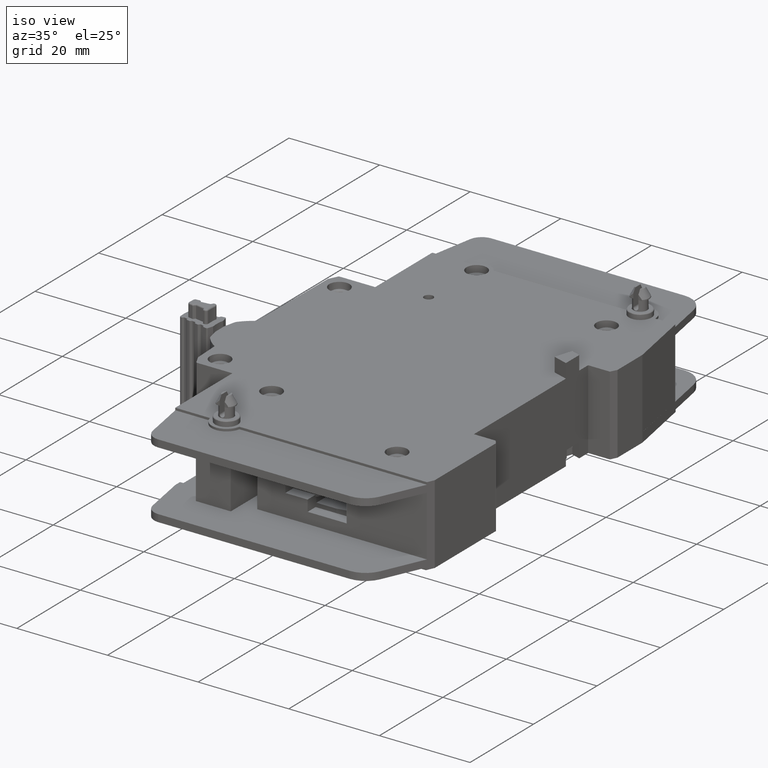
[diagram: clean part render]
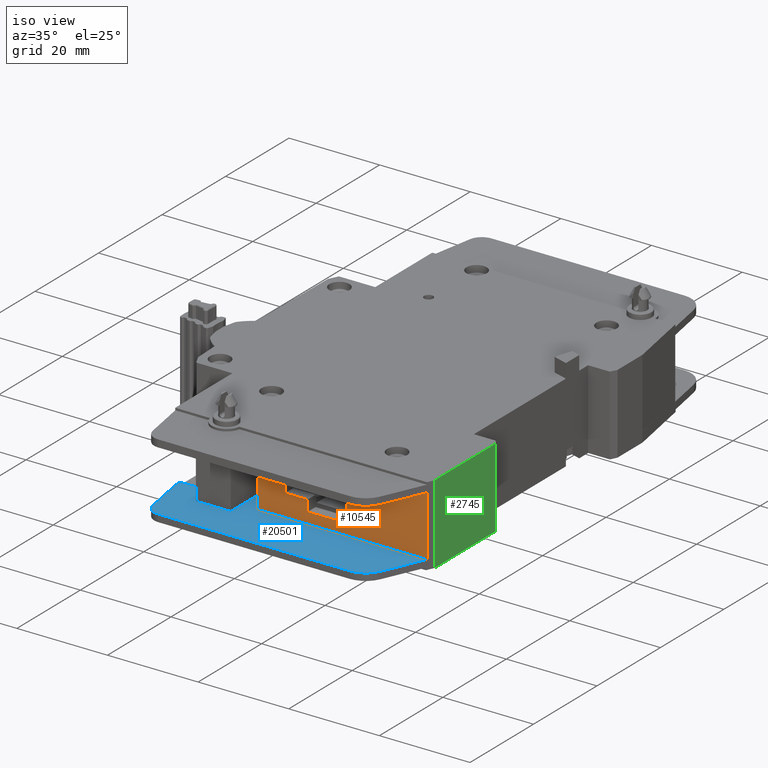
[diagram: same view with three faces highlighted in distinct colors, each labeled with its STEP entity id]
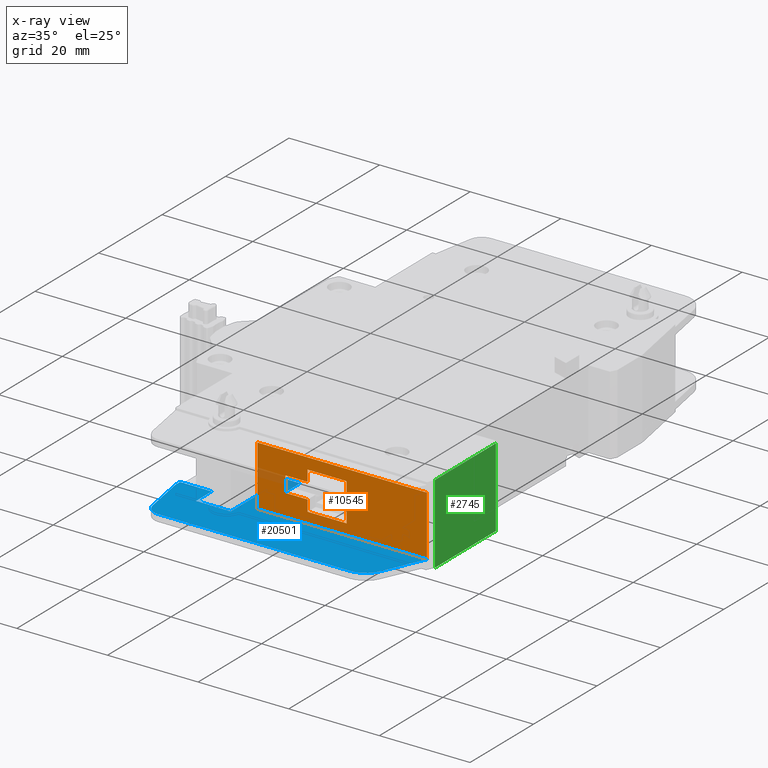
[diagram: x-ray of the same camera — body ghosted, the three highlighted faces saturated]
A machine part, iso view with three faces highlighted in distinct colors.
The next image is the same camera in x-ray (body ghosted, the three faces saturated) — at least one of them is partly hidden behind the body in this view.
Their STEP definitions:

[orange] entity #10545 — the highlighted planar face has unit normal (0, -1, 0).
#97 = LINE ( 'NONE', #29846, #9650 ) ;
#666 = CARTESIAN_POINT ( 'NONE',  ( 0.8858267716535430658, -1.594488188976372900, 0.5098425196850394636 ) ) ;
#886 = EDGE_CURVE ( 'NONE', #11234, #5505, #13536, .T. ) ;
#1080 = ORIENTED_EDGE ( 'NONE', *, *, #27623, .T. ) ;
#2090 = DIRECTION ( 'NONE',  ( 0.0000000000000000000, 0.0000000000000000000, 1.000000000000000000 ) ) ;
#2563 = CARTESIAN_POINT ( 'NONE',  ( 0.8858267716535430658, -1.594488188976379783, 0.4133858267716533641 ) ) ;
#2865 = CARTESIAN_POINT ( 'NONE',  ( 0.6929133858267714219, -1.594488188976380005, -4.312619414957868713 ) ) ;
#3602 = PLANE ( 'NONE',  #17177 ) ;
#3657 = EDGE_CURVE ( 'NONE', #20882, #28601, #23948, .T. ) ;
#4391 = ORIENTED_EDGE ( 'NONE', *, *, #3657, .T. ) ;
#4731 = ORIENTED_EDGE ( 'NONE', *, *, #12220, .T. ) ;
#4952 = VERTEX_POINT ( 'NONE', #16384 ) ;
#5505 = VERTEX_POINT ( 'NONE', #12246 ) ;
#5703 = VECTOR ( 'NONE', #12924, 39.37007874015748143 ) ;
#5750 = LINE ( 'NONE', #17816, #5703 ) ;
#5776 = CARTESIAN_POINT ( 'NONE',  ( 1.413385826771655029, -1.594488188976378229, 0.4133858267716533641 ) ) ;
#5901 = DIRECTION ( 'NONE',  ( 7.209299500779263537E-15, -1.000000000000000000, 0.0000000000000000000 ) ) ;
#6183 = CARTESIAN_POINT ( 'NONE',  ( 0.8858267716535430658, -1.594488188976380005, 0.2755905511811023167 ) ) ;
#6386 = EDGE_CURVE ( 'NONE', #26838, #28141, #25363, .T. ) ;
#6531 = VERTEX_POINT ( 'NONE', #13909 ) ;
#6635 = DIRECTION ( 'NONE',  ( 1.000000000000000000, 7.209299500779263537E-15, 0.0000000000000000000 ) ) ;
#6666 = VECTOR ( 'NONE', #22309, 39.37007874015748143 ) ;
#6697 = DIRECTION ( 'NONE',  ( 0.0000000000000000000, 0.0000000000000000000, 1.000000000000000000 ) ) ;
#7295 = CARTESIAN_POINT ( 'NONE',  ( 0.4488188976377959216, -1.594488188976376231, 0.08267716535433060343 ) ) ;
#7809 = CARTESIAN_POINT ( 'NONE',  ( 0.6929133858267714219, -1.594488188976379783, 0.4133858267716536417 ) ) ;
#7863 = EDGE_LOOP ( 'NONE', ( #1080, #24298, #4731, #24244, #16790, #25910, #26701, #21490 ) ) ;
#8201 = DIRECTION ( 'NONE',  ( 0.0000000000000000000, 0.0000000000000000000, 1.000000000000000000 ) ) ;
#8210 = EDGE_CURVE ( 'NONE', #28141, #28455, #31512, .T. ) ;
#8615 = VERTEX_POINT ( 'NONE', #19971 ) ;
#9650 = VECTOR ( 'NONE', #17406, 39.37007874015748143 ) ;
#10545 = ADVANCED_FACE ( 'NONE', ( #10789, #25653 ), #3602, .T. ) ;
#10734 = VECTOR ( 'NONE', #8201, 39.37007874015748143 ) ;
#10789 = FACE_BOUND ( 'NONE', #7863, .T. ) ;
#10916 = EDGE_CURVE ( 'NONE', #19402, #26838, #16443, .T. ) ;
#10930 = LINE ( 'NONE', #13205, #29692 ) ;
#11194 = CARTESIAN_POINT ( 'NONE',  ( 0.2931100845636888108, -1.594488188976377119, 0.08267716535433089486 ) ) ;
#11234 = VERTEX_POINT ( 'NONE', #26549 ) ;
#11431 = EDGE_CURVE ( 'NONE', #4952, #6531, #5750, .T. ) ;
#12220 = EDGE_CURVE ( 'NONE', #5505, #8615, #97, .T. ) ;
#12246 = CARTESIAN_POINT ( 'NONE',  ( 1.224409448818897461, -1.594488188976379117, 0.1791338582677165503 ) ) ;
#12890 = DIRECTION ( 'NONE',  ( -1.000000000000000000, -2.465042953294826841E-15, 0.0000000000000000000 ) ) ;
#12924 = DIRECTION ( 'NONE',  ( -1.000000000000000000, -7.712273884554577063E-15, 0.0000000000000000000 ) ) ;
#13205 = CARTESIAN_POINT ( 'NONE',  ( 1.413385826771653253, -1.594488188976378229, 0.2755905511811020947 ) ) ;
#13283 = ORIENTED_EDGE ( 'NONE', *, *, #11431, .T. ) ;
#13375 = DIRECTION ( 'NONE',  ( 0.0000000000000000000, -0.0000000000000000000, -1.000000000000000000 ) ) ;
#13536 = LINE ( 'NONE', #13852, #20875 ) ;
#13852 = CARTESIAN_POINT ( 'NONE',  ( 1.224409448818897461, -1.594488188976378895, -4.312619414957868713 ) ) ;
#13909 = CARTESIAN_POINT ( 'NONE',  ( 0.4488188976377958661, -1.594488188976376231, 0.6062992125984251190 ) ) ;
#14244 = CARTESIAN_POINT ( 'NONE',  ( 0.6929133858267714219, -1.594488188976380005, 0.2755905511811023167 ) ) ;
#14497 = LINE ( 'NONE', #24477, #23737 ) ;
#15852 = LINE ( 'NONE', #28127, #10734 ) ;
#16168 = DIRECTION ( 'NONE',  ( 1.000000000000000000, 7.209299500779263537E-15, 0.0000000000000000000 ) ) ;
#16384 = CARTESIAN_POINT ( 'NONE',  ( 1.922525865040916937, -1.594488188976365572, 0.6062992125984251190 ) ) ;
#16443 = LINE ( 'NONE', #2865, #21396 ) ;
#16790 = ORIENTED_EDGE ( 'NONE', *, *, #22990, .T. ) ;
#17177 = AXIS2_PLACEMENT_3D ( 'NONE', #23525, #5901, #16168 ) ;
#17406 = DIRECTION ( 'NONE',  ( -1.000000000000000000, -2.465042953294826841E-15, 0.0000000000000000000 ) ) ;
#17556 = CARTESIAN_POINT ( 'NONE',  ( 0.8858267716535430658, -1.594488188976379783, -4.312619414957868713 ) ) ;
#17816 = CARTESIAN_POINT ( 'NONE',  ( 1.922525865040916937, -1.594488188976365572, 0.6062992125984252301 ) ) ;
#19402 = VERTEX_POINT ( 'NONE', #14244 ) ;
#19463 = VECTOR ( 'NONE', #6635, 39.37007874015748143 ) ;
#19757 = EDGE_CURVE ( 'NONE', #28601, #4952, #15852, .T. ) ;
#19816 = LINE ( 'NONE', #19972, #20422 ) ;
#19971 = CARTESIAN_POINT ( 'NONE',  ( 0.8858267716535430658, -1.594488188976379783, 0.1791338582677165503 ) ) ;
#19972 = CARTESIAN_POINT ( 'NONE',  ( 1.413385826771654363, -1.594488188976378229, 0.5098425196850394636 ) ) ;
#20422 = VECTOR ( 'NONE', #29946, 39.37007874015748143 ) ;
#20493 = CARTESIAN_POINT ( 'NONE',  ( 0.4488188976377959216, -1.594488188976376231, 0.08267716535433060343 ) ) ;
#20875 = VECTOR ( 'NONE', #13375, 39.37007874015748143 ) ;
#20882 = VERTEX_POINT ( 'NONE', #20493 ) ;
#21090 = EDGE_CURVE ( 'NONE', #20882, #6531, #29674, .T. ) ;
#21323 = ORIENTED_EDGE ( 'NONE', *, *, #21090, .F. ) ;
#21396 = VECTOR ( 'NONE', #29675, 39.37007874015748143 ) ;
#21490 = ORIENTED_EDGE ( 'NONE', *, *, #8210, .T. ) ;
#22309 = DIRECTION ( 'NONE',  ( -1.304303365396095688E-16, 0.0000000000000000000, 1.000000000000000000 ) ) ;
#22576 = DIRECTION ( 'NONE',  ( 1.000000000000000000, 2.465042953294826841E-15, -3.540251991789404377E-16 ) ) ;
#22990 = EDGE_CURVE ( 'NONE', #32114, #19402, #10930, .T. ) ;
#23079 = ORIENTED_EDGE ( 'NONE', *, *, #19757, .T. ) ;
#23377 = CARTESIAN_POINT ( 'NONE',  ( 1.922525865040940252, -1.594488188976375787, 0.08267716535433072833 ) ) ;
#23525 = CARTESIAN_POINT ( 'NONE',  ( 0.2931100845636888108, -1.594488188976377119, -4.312619414957868713 ) ) ;
#23737 = VECTOR ( 'NONE', #2090, 39.37007874015748143 ) ;
#23948 = LINE ( 'NONE', #11194, #19463 ) ;
#24244 = ORIENTED_EDGE ( 'NONE', *, *, #30245, .T. ) ;
#24298 = ORIENTED_EDGE ( 'NONE', *, *, #886, .T. ) ;
#24328 = VECTOR ( 'NONE', #6697, 39.37007874015748143 ) ;
#24477 = CARTESIAN_POINT ( 'NONE',  ( 0.8858267716535430658, -1.594488188976379783, -4.312619414957868713 ) ) ;
#25363 = LINE ( 'NONE', #5776, #27367 ) ;
#25653 = FACE_OUTER_BOUND ( 'NONE', #32043, .T. ) ;
#25910 = ORIENTED_EDGE ( 'NONE', *, *, #10916, .T. ) ;
#26549 = CARTESIAN_POINT ( 'NONE',  ( 1.224409448818897461, -1.594488188976378895, 0.5098425196850394636 ) ) ;
#26701 = ORIENTED_EDGE ( 'NONE', *, *, #6386, .T. ) ;
#26838 = VERTEX_POINT ( 'NONE', #7809 ) ;
#27367 = VECTOR ( 'NONE', #22576, 39.37007874015748143 ) ;
#27623 = EDGE_CURVE ( 'NONE', #28455, #11234, #19816, .T. ) ;
#28127 = CARTESIAN_POINT ( 'NONE',  ( 1.922525865040916937, -1.594488188976365572, -4.312619414957868713 ) ) ;
#28141 = VERTEX_POINT ( 'NONE', #2563 ) ;
#28455 = VERTEX_POINT ( 'NONE', #666 ) ;
#28601 = VERTEX_POINT ( 'NONE', #23377 ) ;
#29674 = LINE ( 'NONE', #7295, #6666 ) ;
#29675 = DIRECTION ( 'NONE',  ( 0.0000000000000000000, 0.0000000000000000000, 1.000000000000000000 ) ) ;
#29692 = VECTOR ( 'NONE', #12890, 39.37007874015748143 ) ;
#29846 = CARTESIAN_POINT ( 'NONE',  ( 1.413385826771653253, -1.594488188976378229, 0.1791338582677164948 ) ) ;
#29946 = DIRECTION ( 'NONE',  ( 1.000000000000000000, 2.465042953294826841E-15, -2.017120320903262963E-16 ) ) ;
#30245 = EDGE_CURVE ( 'NONE', #8615, #32114, #14497, .T. ) ;
#31512 = LINE ( 'NONE', #17556, #24328 ) ;
#32043 = EDGE_LOOP ( 'NONE', ( #21323, #4391, #23079, #13283 ) ) ;
#32114 = VERTEX_POINT ( 'NONE', #6183 ) ;

[blue] entity #20501 — the highlighted planar face has unit normal (0, 0, -1).
#422 = CARTESIAN_POINT ( 'NONE',  ( 0.01181102362598427866, -1.732283464566929165, 0.08267716535433072833 ) ) ;
#552 = ORIENTED_EDGE ( 'NONE', *, *, #29129, .T. ) ;
#1087 = FACE_OUTER_BOUND ( 'NONE', #10956, .T. ) ;
#1091 = LINE ( 'NONE', #23793, #29285 ) ;
#1098 = DIRECTION ( 'NONE',  ( 0.0000000000000000000, -1.000000000000000000, 2.770914720378707009E-16 ) ) ;
#1352 = EDGE_CURVE ( 'NONE', #10665, #11762, #1091, .T. ) ;
#1453 = ORIENTED_EDGE ( 'NONE', *, *, #16601, .F. ) ;
#2029 = AXIS2_PLACEMENT_3D ( 'NONE', #15262, #9889, #22458 ) ;
#2538 = CARTESIAN_POINT ( 'NONE',  ( 0.01181102362598427866, -1.732283464566929165, 0.08267716535433072833 ) ) ;
#2663 = VECTOR ( 'NONE', #25258, 39.37007874015748143 ) ;
#2775 = CARTESIAN_POINT ( 'NONE',  ( -0.08136918653413385827, -1.948818897637795367, 0.08267716535433072833 ) ) ;
#2823 = EDGE_CURVE ( 'NONE', #10608, #17342, #9254, .T. ) ;
#2923 = VERTEX_POINT ( 'NONE', #2538 ) ;
#3553 = CARTESIAN_POINT ( 'NONE',  ( -0.2637795275551181318, -1.535433070866141669, 0.08267716535433065894 ) ) ;
#3657 = EDGE_CURVE ( 'NONE', #20882, #28601, #23948, .T. ) ;
#4002 = VECTOR ( 'NONE', #1098, 39.37007874015748143 ) ;
#4062 = DIRECTION ( 'NONE',  ( 7.209299500779263537E-15, -1.000000000000000000, -0.0000000000000000000 ) ) ;
#6168 = ORIENTED_EDGE ( 'NONE', *, *, #23704, .F. ) ;
#6635 = DIRECTION ( 'NONE',  ( 1.000000000000000000, 7.209299500779263537E-15, 0.0000000000000000000 ) ) ;
#7485 = EDGE_CURVE ( 'NONE', #14835, #29790, #26842, .T. ) ;
#7687 = DIRECTION ( 'NONE',  ( -1.000000000000000000, 0.0000000000000000000, 0.0000000000000000000 ) ) ;
#7951 = CARTESIAN_POINT ( 'NONE',  ( 1.149633544619561132, -1.535433070866141669, 0.08267716535433065894 ) ) ;
#9222 = VECTOR ( 'NONE', #4062, 39.37007874015748143 ) ;
#9254 = LINE ( 'NONE', #19225, #11071 ) ;
#9328 = CARTESIAN_POINT ( 'NONE',  ( -0.08136918653413387215, -2.066929133858267598, 0.08267716535433072833 ) ) ;
#9696 = ORIENTED_EDGE ( 'NONE', *, *, #15842, .F. ) ;
#9878 = EDGE_CURVE ( 'NONE', #20746, #14835, #23415, .T. ) ;
#9889 = DIRECTION ( 'NONE',  ( 0.0000000000000000000, 0.0000000000000000000, -1.000000000000000000 ) ) ;
#10608 = VERTEX_POINT ( 'NONE', #28600 ) ;
#10665 = VERTEX_POINT ( 'NONE', #12221 ) ;
#10956 = EDGE_LOOP ( 'NONE', ( #9696, #20519, #552, #14605, #27273, #23666, #20243, #16415, #6168, #12310, #1453, #20960, #30970 ) ) ;
#11071 = VECTOR ( 'NONE', #29197, 39.37007874015748143 ) ;
#11194 = CARTESIAN_POINT ( 'NONE',  ( 0.2931100845636888108, -1.594488188976377119, 0.08267716535433089486 ) ) ;
#11243 = CARTESIAN_POINT ( 'NONE',  ( 0.4488188976377882056, -0.5225311336858536881, 0.08267716535433060343 ) ) ;
#11762 = VERTEX_POINT ( 'NONE', #19915 ) ;
#12221 = CARTESIAN_POINT ( 'NONE',  ( 0.3149606299212512339, -1.062992125984252079, 0.08267716535433067282 ) ) ;
#12310 = ORIENTED_EDGE ( 'NONE', *, *, #3657, .F. ) ;
#12968 = VERTEX_POINT ( 'NONE', #30900 ) ;
#13494 = DIRECTION ( 'NONE',  ( -1.000000000000000000, 0.0000000000000000000, -0.0000000000000000000 ) ) ;
#13829 = VECTOR ( 'NONE', #29782, 39.37007874015748143 ) ;
#14293 = DIRECTION ( 'NONE',  ( -0.4067366430744553396, -0.9135454576431996099, 0.0000000000000000000 ) ) ;
#14572 = VERTEX_POINT ( 'NONE', #27179 ) ;
#14605 = ORIENTED_EDGE ( 'NONE', *, *, #31618, .T. ) ;
#14610 = CARTESIAN_POINT ( 'NONE',  ( 1.764177246872519422, -1.950145008479516440, 0.08267716535433072833 ) ) ;
#14835 = VERTEX_POINT ( 'NONE', #24851 ) ;
#14962 = LINE ( 'NONE', #7951, #2663 ) ;
#15262 = CARTESIAN_POINT ( 'NONE',  ( 1.584345463872047333, -1.870078740157480324, 0.08267716535433072833 ) ) ;
#15434 = VERTEX_POINT ( 'NONE', #25134 ) ;
#15454 = AXIS2_PLACEMENT_3D ( 'NONE', #25750, #20702, #13494 ) ;
#15842 = EDGE_CURVE ( 'NONE', #2923, #11762, #19867, .T. ) ;
#16017 = VECTOR ( 'NONE', #31565, 39.37007874015748143 ) ;
#16415 = ORIENTED_EDGE ( 'NONE', *, *, #9878, .F. ) ;
#16601 = EDGE_CURVE ( 'NONE', #12968, #20882, #19086, .T. ) ;
#16846 = CARTESIAN_POINT ( 'NONE',  ( 0.3149606299212512339, -1.062992125984252079, 0.08267716535433067282 ) ) ;
#17325 = CARTESIAN_POINT ( 'NONE',  ( -0.2637795275551186314, -1.594488188976390886, 0.08267716535433065894 ) ) ;
#17342 = VERTEX_POINT ( 'NONE', #17325 ) ;
#17636 = DIRECTION ( 'NONE',  ( 0.0000000000000000000, 0.0000000000000000000, -1.000000000000000000 ) ) ;
#19086 = LINE ( 'NONE', #11243, #9222 ) ;
#19116 = VECTOR ( 'NONE', #25250, 39.37007874015748143 ) ;
#19194 = EDGE_CURVE ( 'NONE', #14572, #2923, #22152, .T. ) ;
#19225 = CARTESIAN_POINT ( 'NONE',  ( -0.1976850628743680727, -1.969328524920090251, 0.08267716535433072833 ) ) ;
#19373 = LINE ( 'NONE', #19684, #28023 ) ;
#19463 = VECTOR ( 'NONE', #6635, 39.37007874015748143 ) ;
#19684 = CARTESIAN_POINT ( 'NONE',  ( 1.948818897637795589, -1.535433070866142113, 0.08267716535433072833 ) ) ;
#19711 = DIRECTION ( 'NONE',  ( 0.0000000000000000000, -1.000000000000000000, 2.770914720378707009E-16 ) ) ;
#19867 = LINE ( 'NONE', #422, #19116 ) ;
#19915 = CARTESIAN_POINT ( 'NONE',  ( 0.3149606299212598381, -1.732283464566929165, 0.08267716535433072833 ) ) ;
#20243 = ORIENTED_EDGE ( 'NONE', *, *, #7485, .F. ) ;
#20493 = CARTESIAN_POINT ( 'NONE',  ( 0.4488188976377959216, -1.594488188976376231, 0.08267716535433060343 ) ) ;
#20501 = ADVANCED_FACE ( 'NONE', ( #1087 ), #23305, .F. ) ;
#20519 = ORIENTED_EDGE ( 'NONE', *, *, #19194, .F. ) ;
#20702 = DIRECTION ( 'NONE',  ( 0.0000000000000000000, 0.0000000000000000000, -1.000000000000000000 ) ) ;
#20746 = VERTEX_POINT ( 'NONE', #14610 ) ;
#20882 = VERTEX_POINT ( 'NONE', #20493 ) ;
#20960 = ORIENTED_EDGE ( 'NONE', *, *, #21280, .F. ) ;
#21280 = EDGE_CURVE ( 'NONE', #10665, #12968, #26179, .T. ) ;
#22152 = LINE ( 'NONE', #32126, #31578 ) ;
#22458 = DIRECTION ( 'NONE',  ( -1.000000000000000000, 0.0000000000000000000, 0.0000000000000000000 ) ) ;
#23305 = PLANE ( 'NONE',  #15454 ) ;
#23377 = CARTESIAN_POINT ( 'NONE',  ( 1.922525865040940252, -1.594488188976375787, 0.08267716535433072833 ) ) ;
#23415 = CIRCLE ( 'NONE', #2029, 0.1968503937007624605 ) ;
#23666 = ORIENTED_EDGE ( 'NONE', *, *, #24525, .F. ) ;
#23704 = EDGE_CURVE ( 'NONE', #28601, #20746, #19373, .T. ) ;
#23793 = CARTESIAN_POINT ( 'NONE',  ( 0.3149606299212512339, -0.5225311336858547984, 0.08267716535433067282 ) ) ;
#23948 = LINE ( 'NONE', #11194, #19463 ) ;
#24525 = EDGE_CURVE ( 'NONE', #29790, #10608, #29630, .T. ) ;
#24851 = CARTESIAN_POINT ( 'NONE',  ( 1.584345463872047333, -2.066929133858267598, 0.08267716535433072833 ) ) ;
#25134 = CARTESIAN_POINT ( 'NONE',  ( -0.2637795275551181318, -1.535433070866141669, 0.08267716535433065894 ) ) ;
#25250 = DIRECTION ( 'NONE',  ( 1.000000000000000000, 0.0000000000000000000, 0.0000000000000000000 ) ) ;
#25258 = DIRECTION ( 'NONE',  ( -1.000000000000000000, -0.0000000000000000000, -0.0000000000000000000 ) ) ;
#25750 = CARTESIAN_POINT ( 'NONE',  ( -0.3897637795275590844, -0.2106240460257480240, 0.08267716535433072833 ) ) ;
#25754 = DIRECTION ( 'NONE',  ( 7.209299500779263537E-15, -1.000000000000000000, -0.0000000000000000000 ) ) ;
#26179 = LINE ( 'NONE', #16846, #16017 ) ;
#26842 = LINE ( 'NONE', #29617, #13829 ) ;
#27179 = CARTESIAN_POINT ( 'NONE',  ( 0.01181102362598431162, -1.535433070866141669, 0.08267716535433065894 ) ) ;
#27273 = ORIENTED_EDGE ( 'NONE', *, *, #2823, .F. ) ;
#28023 = VECTOR ( 'NONE', #14293, 39.37007874015748143 ) ;
#28600 = CARTESIAN_POINT ( 'NONE',  ( -0.1976850628743680727, -1.969328524920090251, 0.08267716535433072833 ) ) ;
#28601 = VERTEX_POINT ( 'NONE', #23377 ) ;
#29129 = EDGE_CURVE ( 'NONE', #14572, #15434, #14962, .T. ) ;
#29197 = DIRECTION ( 'NONE',  ( -0.1736481776568704338, 0.9848077530139819347, 0.0000000000000000000 ) ) ;
#29285 = VECTOR ( 'NONE', #25754, 39.37007874015748143 ) ;
#29617 = CARTESIAN_POINT ( 'NONE',  ( 1.584345463872047333, -2.066929133858267598, 0.08267716535433072833 ) ) ;
#29630 = CIRCLE ( 'NONE', #31198, 0.1181102362204713430 ) ;
#29782 = DIRECTION ( 'NONE',  ( -1.000000000000000000, 0.0000000000000000000, 0.0000000000000000000 ) ) ;
#29790 = VERTEX_POINT ( 'NONE', #9328 ) ;
#30900 = CARTESIAN_POINT ( 'NONE',  ( 0.4488188976377920913, -1.062992125984252079, 0.08267716535433060343 ) ) ;
#30970 = ORIENTED_EDGE ( 'NONE', *, *, #1352, .T. ) ;
#30985 = LINE ( 'NONE', #3553, #4002 ) ;
#31198 = AXIS2_PLACEMENT_3D ( 'NONE', #2775, #17636, #7687 ) ;
#31565 = DIRECTION ( 'NONE',  ( 1.000000000000000000, 0.0000000000000000000, -5.102127870519963790E-16 ) ) ;
#31578 = VECTOR ( 'NONE', #19711, 39.37007874015748143 ) ;
#31618 = EDGE_CURVE ( 'NONE', #15434, #17342, #30985, .T. ) ;
#32126 = CARTESIAN_POINT ( 'NONE',  ( 0.01181102362598431162, -1.535433070866141669, 0.08267716535433065894 ) ) ;

[green] entity #2745 — the highlighted planar face has unit normal (1, 0, -0).
#1 = EDGE_CURVE ( 'NONE', #31551, #203, #27832, .T. ) ;
#203 = VERTEX_POINT ( 'NONE', #4779 ) ;
#1039 = ORIENTED_EDGE ( 'NONE', *, *, #26207, .T. ) ;
#2745 = ADVANCED_FACE ( 'NONE', ( #19056 ), #17070, .T. ) ;
#3176 = VERTEX_POINT ( 'NONE', #15803 ) ;
#4779 = CARTESIAN_POINT ( 'NONE',  ( 1.948818897637795589, -1.535433070866142113, 0.0000000000000000000 ) ) ;
#5966 = DIRECTION ( 'NONE',  ( 0.0000000000000000000, 0.0000000000000000000, 1.000000000000000000 ) ) ;
#6172 = CARTESIAN_POINT ( 'NONE',  ( 1.948818897637797809, -1.535433070866142780, -4.312619414957868713 ) ) ;
#6815 = DIRECTION ( 'NONE',  ( -3.241516273093384471E-15, 1.000000000000000000, 0.0000000000000000000 ) ) ;
#8127 = LINE ( 'NONE', #6172, #18747 ) ;
#8233 = CARTESIAN_POINT ( 'NONE',  ( 1.948818897637770275, -0.7769413690948819839, 0.0000000000000000000 ) ) ;
#12016 = CARTESIAN_POINT ( 'NONE',  ( 1.948818897637797809, -1.535433070866142780, -4.312619414957868713 ) ) ;
#13245 = LINE ( 'NONE', #17496, #18341 ) ;
#14464 = DIRECTION ( 'NONE',  ( 1.000000000000000000, 3.241516273093384471E-15, -0.0000000000000000000 ) ) ;
#15420 = LINE ( 'NONE', #18038, #18222 ) ;
#15577 = ORIENTED_EDGE ( 'NONE', *, *, #29503, .F. ) ;
#15803 = CARTESIAN_POINT ( 'NONE',  ( 1.948818897637795367, -0.7769413690948819839, 0.6889763779527560139 ) ) ;
#17070 = PLANE ( 'NONE',  #25179 ) ;
#17496 = CARTESIAN_POINT ( 'NONE',  ( 1.948818897637797809, -1.535433070866142780, 0.6889763779527560139 ) ) ;
#18038 = CARTESIAN_POINT ( 'NONE',  ( 1.948818897637795367, -0.7769413690948819839, -4.312619414957868713 ) ) ;
#18222 = VECTOR ( 'NONE', #5966, 39.37007874015748143 ) ;
#18341 = VECTOR ( 'NONE', #27966, 39.37007874015748143 ) ;
#18747 = VECTOR ( 'NONE', #28219, 39.37007874015748143 ) ;
#18787 = VECTOR ( 'NONE', #23089, 39.37007874015748143 ) ;
#19056 = FACE_OUTER_BOUND ( 'NONE', #26136, .T. ) ;
#23089 = DIRECTION ( 'NONE',  ( 3.349566815529835091E-14, -1.000000000000000000, 0.0000000000000000000 ) ) ;
#23476 = CARTESIAN_POINT ( 'NONE',  ( 1.948818897637770275, -0.7769413690948819839, 0.0000000000000000000 ) ) ;
#25179 = AXIS2_PLACEMENT_3D ( 'NONE', #12016, #14464, #6815 ) ;
#25551 = ORIENTED_EDGE ( 'NONE', *, *, #1, .F. ) ;
#25658 = VERTEX_POINT ( 'NONE', #27402 ) ;
#25847 = EDGE_CURVE ( 'NONE', #203, #25658, #8127, .T. ) ;
#26136 = EDGE_LOOP ( 'NONE', ( #1039, #15577, #27194, #25551 ) ) ;
#26207 = EDGE_CURVE ( 'NONE', #31551, #3176, #15420, .T. ) ;
#27194 = ORIENTED_EDGE ( 'NONE', *, *, #25847, .F. ) ;
#27402 = CARTESIAN_POINT ( 'NONE',  ( 1.948818897637797809, -1.535433070866142780, 0.6889763779527560139 ) ) ;
#27832 = LINE ( 'NONE', #8233, #18787 ) ;
#27966 = DIRECTION ( 'NONE',  ( -3.241516273093384471E-15, 1.000000000000000000, 0.0000000000000000000 ) ) ;
#28219 = DIRECTION ( 'NONE',  ( 0.0000000000000000000, 0.0000000000000000000, 1.000000000000000000 ) ) ;
#29503 = EDGE_CURVE ( 'NONE', #25658, #3176, #13245, .T. ) ;
#31551 = VERTEX_POINT ( 'NONE', #23476 ) ;